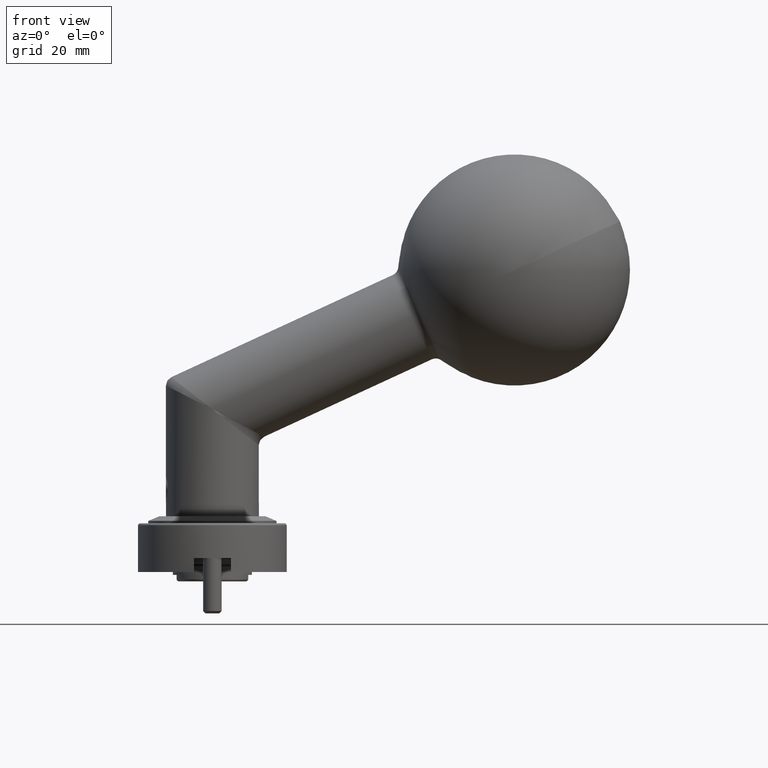
[diagram: clean part render]
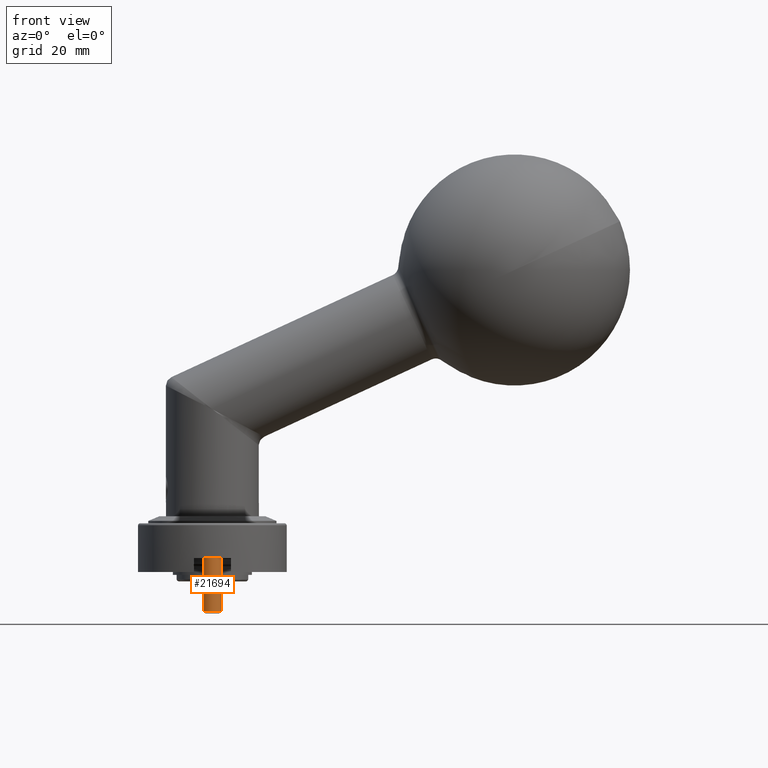
[diagram: same view with one face highlighted and labeled with its STEP entity id]
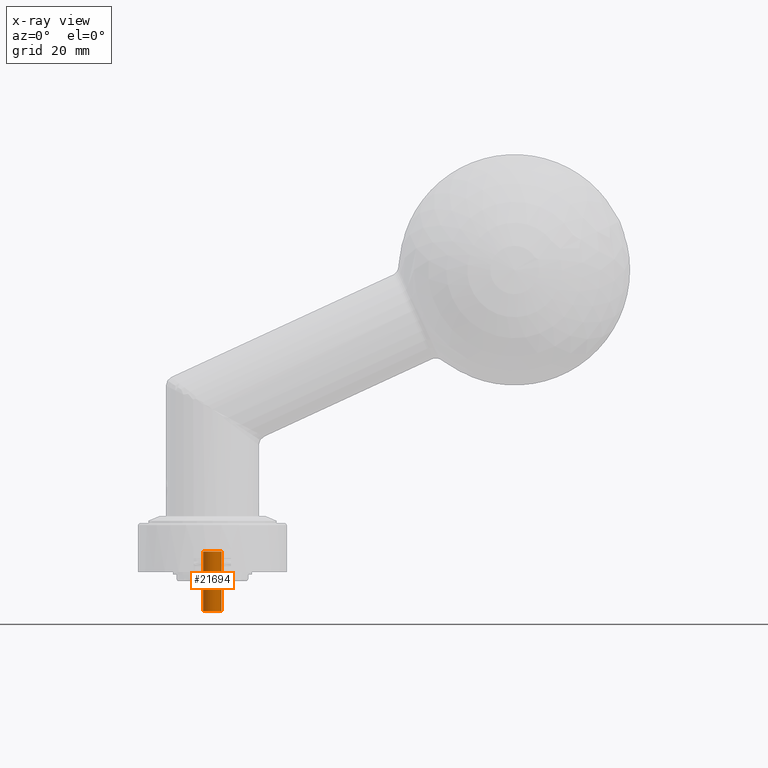
[diagram: x-ray of the same camera — body ghosted, the highlighted face saturated]
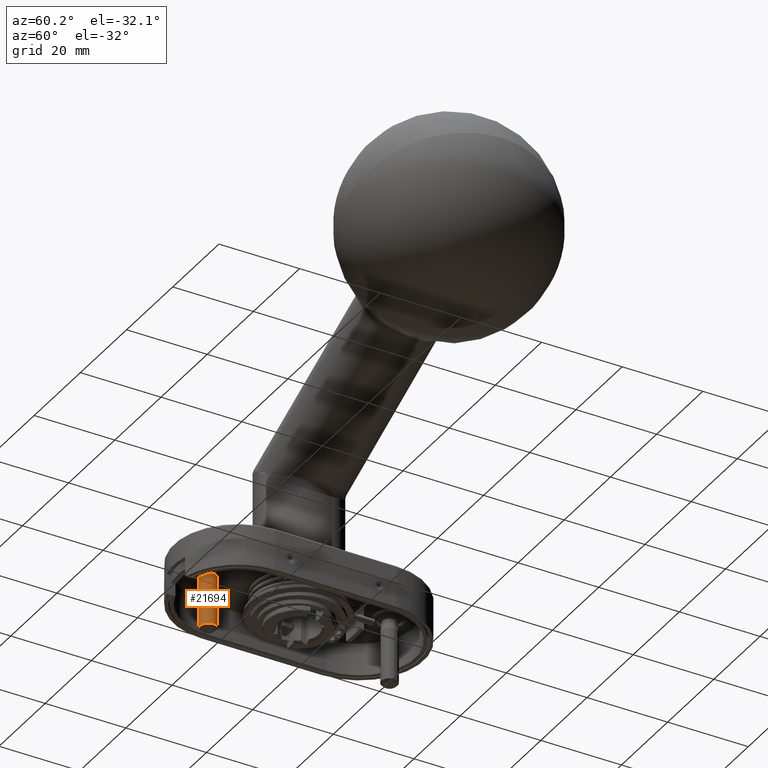
[diagram: same view with one face highlighted and labeled with its STEP entity id]
A machine part, front view. The second image highlights one B-rep face of the part: STEP entity #21694.
The next image is the same camera in x-ray: the body ghosted, the highlighted face saturated — about 0% of this face is hidden behind the body in this view.
A second angle (auxiliary view) of the same face is appended — the face is thin or edge-on in the first view.
In plain terms, the highlighted cylindrical surface (bore or boss wall) has radius 2 mm, axis along (-0, 0, -1).
Its self-contained STEP definition (entity closure, byte-faithful):
#1502 = VERTEX_POINT ( 'NONE', #12227 ) ;
#1705 = AXIS2_PLACEMENT_3D ( 'NONE', #13382, #16782, #13461 ) ;
#2474 = CARTESIAN_POINT ( 'NONE',  ( 3.352658847189300200E-030, 0.5000000000000004400, -2.000000000000060400 ) ) ;
#3132 = FACE_OUTER_BOUND ( 'NONE', #14225, .T. ) ;
#3412 = ORIENTED_EDGE ( 'NONE', *, *, #8029, .T. ) ;
#6060 = DIRECTION ( 'NONE',  ( 1.676329423594599600E-030, 0.0000000000000000000, -1.000000000000000000 ) ) ;
#6215 = CARTESIAN_POINT ( 'NONE',  ( 0.0000000000000000000, 13.29999999999999900, 0.0000000000000000000 ) ) ;
#6720 = DIRECTION ( 'NONE',  ( 0.0000000000000000000, 1.000000000000000000, -0.0000000000000000000 ) ) ;
#7780 = VERTEX_POINT ( 'NONE', #2474 ) ;
#7974 = EDGE_LOOP ( 'NONE', ( #3412 ) ) ;
#8029 = EDGE_CURVE ( 'NONE', #7780, #7780, #18971, .T. ) ;
#9270 = AXIS2_PLACEMENT_3D ( 'NONE', #11768, #6720, #15063 ) ;
#11768 = CARTESIAN_POINT ( 'NONE',  ( 0.0000000000000000000, 0.5000000000000004400, 0.0000000000000000000 ) ) ;
#12023 = FACE_OUTER_BOUND ( 'NONE', #7974, .T. ) ;
#12227 = CARTESIAN_POINT ( 'NONE',  ( 3.352658847189298800E-030, 13.29999999999999900, -2.000000000000059500 ) ) ;
#13382 = CARTESIAN_POINT ( 'NONE',  ( 0.0000000000000000000, 0.0000000000000000000, 0.0000000000000000000 ) ) ;
#13461 = DIRECTION ( 'NONE',  ( 1.676329423594599600E-030, 0.0000000000000000000, -1.000000000000000000 ) ) ;
#14225 = EDGE_LOOP ( 'NONE', ( #16496 ) ) ;
#14857 = CIRCLE ( 'NONE', #19150, 2.000000000000059500 ) ;
#15063 = DIRECTION ( 'NONE',  ( 1.676329423594599600E-030, 0.0000000000000000000, -1.000000000000000000 ) ) ;
#16181 = DIRECTION ( 'NONE',  ( -0.0000000000000000000, -1.000000000000000000, 0.0000000000000000000 ) ) ;
#16496 = ORIENTED_EDGE ( 'NONE', *, *, #19657, .T. ) ;
#16782 = DIRECTION ( 'NONE',  ( -0.0000000000000000000, -1.000000000000000000, 0.0000000000000000000 ) ) ;
#18971 = CIRCLE ( 'NONE', #9270, 2.000000000000060400 ) ;
#19150 = AXIS2_PLACEMENT_3D ( 'NONE', #6215, #16181, #6060 ) ;
#19435 = CYLINDRICAL_SURFACE ( 'NONE', #1705, 2.000000000000060400 ) ;
#19657 = EDGE_CURVE ( 'NONE', #1502, #1502, #14857, .T. ) ;
#21694 = ADVANCED_FACE ( 'NONE', ( #12023, #3132 ), #19435, .T. ) ;